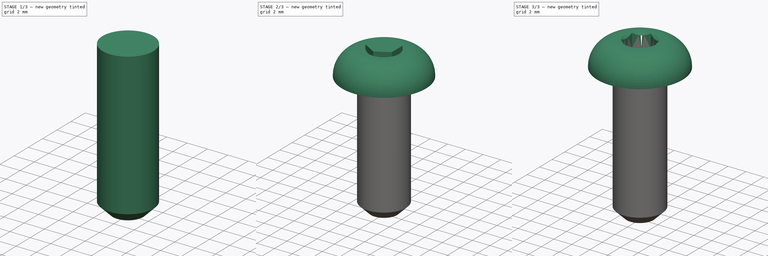
[diagram: build sequence overview — one tinted view per stage of 3, left to right]
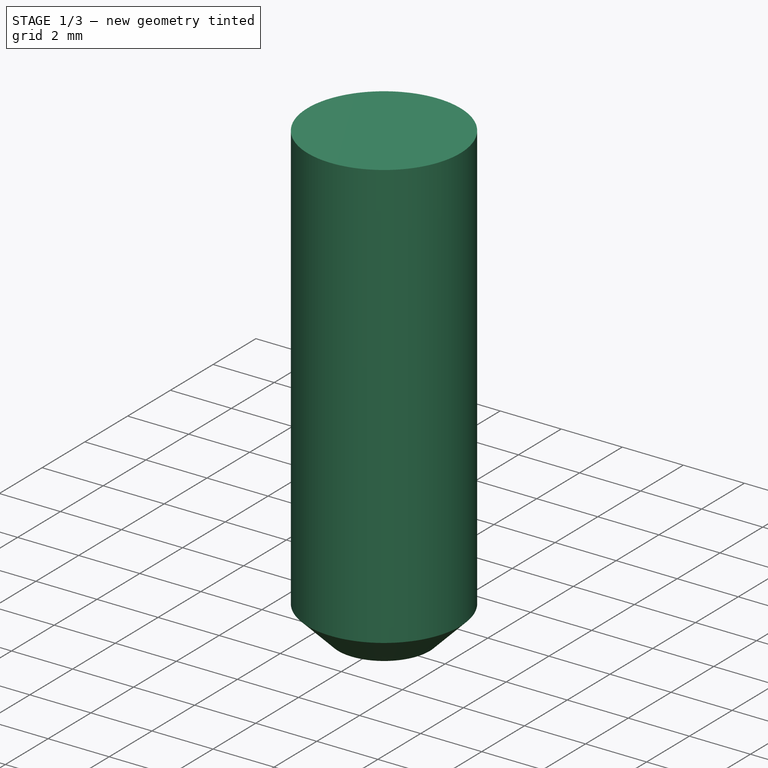
[diagram: stage 1 of 3 — iso view after this stage's code; geometry added in this stage tinted green]
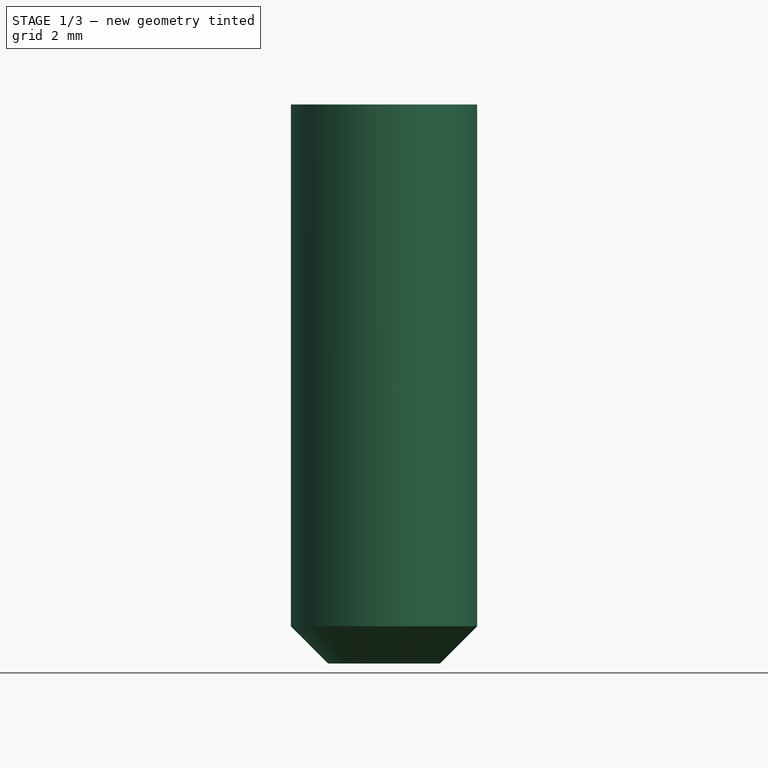
[diagram: stage 1 of 3 — front view after this stage's code; geometry added in this stage tinted green]
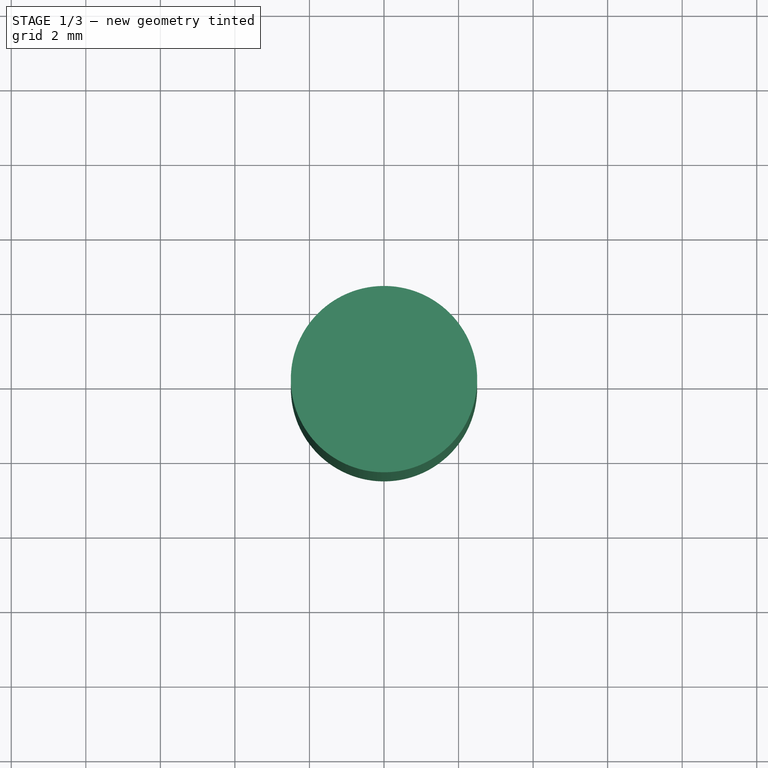
[diagram: stage 1 of 3 — top view after this stage's code; geometry added in this stage tinted green]
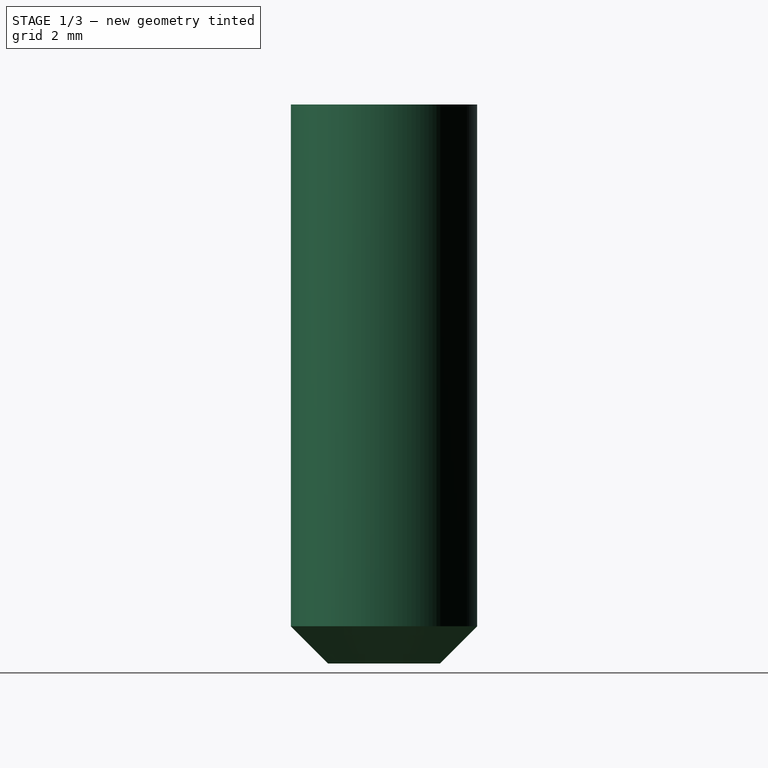
[diagram: stage 1 of 3 — right view after this stage's code; geometry added in this stage tinted green]
FCSTD DOCUMENT  (FreeCAD 0.20R)
Label: ISO7380_Hex_Socket_Button_Head_Screw_M5xXX
License: All rights reserved
LicenseURL: http://en.wikipedia.org/wiki/All_rights_reserved
objects: Sketcher::SketchObject×3, PartDesign::Body×3, PartDesign::Chamfer×2, PartDesign::Pad×2, PartDesign::Revolution×1, Part::Cut×1, Part::MultiFuse×1
note: 18 computed .brp shape members not serialized (recipe doc carries the construction recipe); baked Part::Feature solids carry a one-line shape summary decoded from their .brp

FEATURE [Sketcher::SketchObject] Sketch002
  FullyConstrained = true
  MapMode = 5
  Support = -> [XY_Plane002]
  sketch-geometry (1):
    g0: Circle CenterX=0 CenterY=0 CenterZ=0 NormalX=0 NormalY=0 NormalZ=1 AngleXU=0 Radius=2.5
  constraints (2):
    c: Radius(g0) = 2.5
    c: Coincident(g-1,g0)
FEATURE [PartDesign::Pad] Pad001  label="SetLength"
  Direction = (0,0,1)
  Length = 15
  Length2 = 10
  Profile = -> Sketch002
  ReferenceAxis = -> Sketch002 [N_Axis]
  Reversed = true
  Type = 0
FEATURE [PartDesign::Chamfer] Chamfer001
  Angle = 45
  Base = -> Pad001 [Edge3]
  BaseFeature = -> Pad001
  ChamferType = 0
  FlipDirection = false
  Size = 1
  Size2 = 1
  SupportTransform = false
  UseAllEdges = false
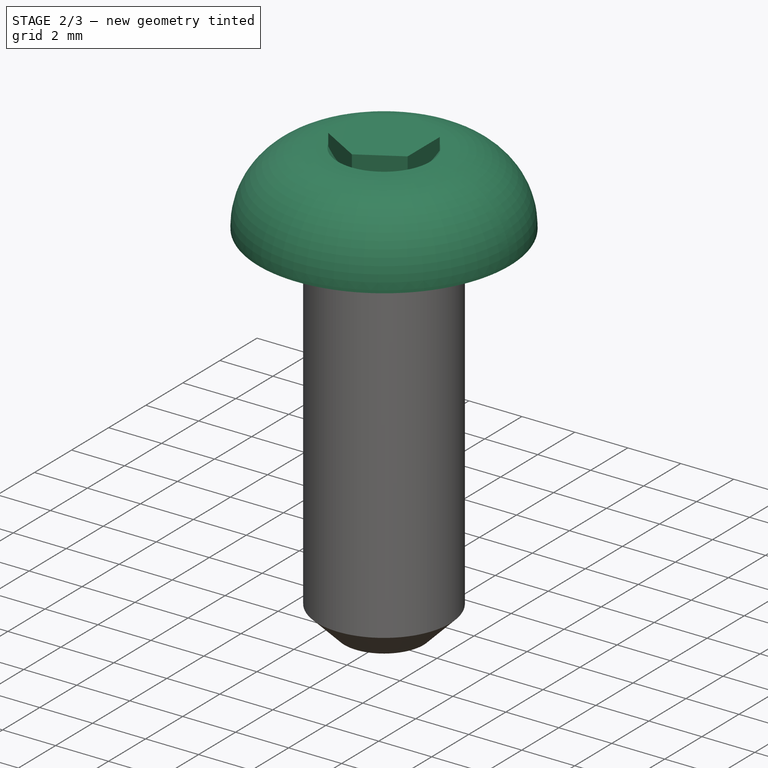
[diagram: stage 2 of 3 — iso view after this stage's code; geometry added in this stage tinted green]
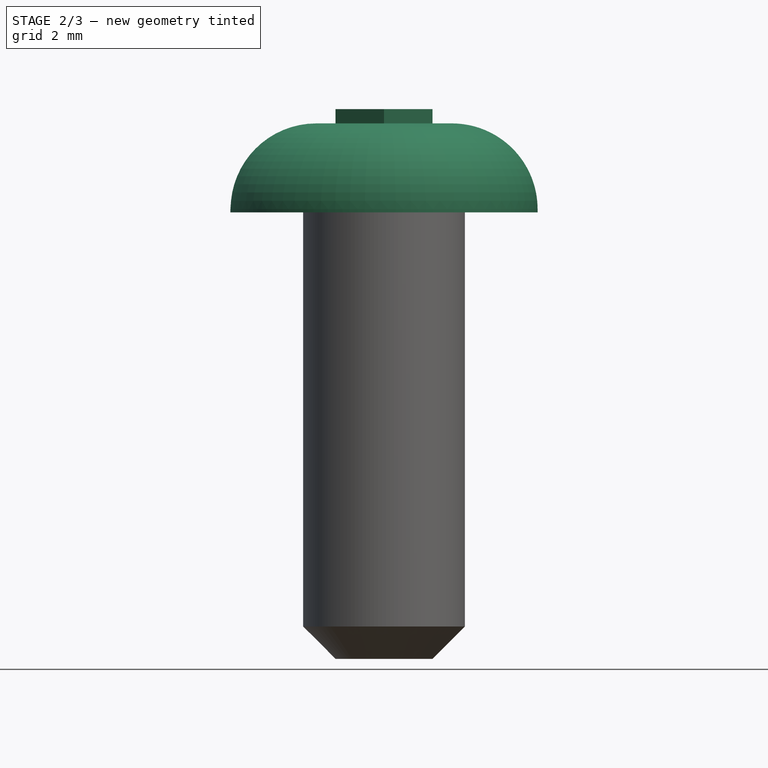
[diagram: stage 2 of 3 — front view after this stage's code; geometry added in this stage tinted green]
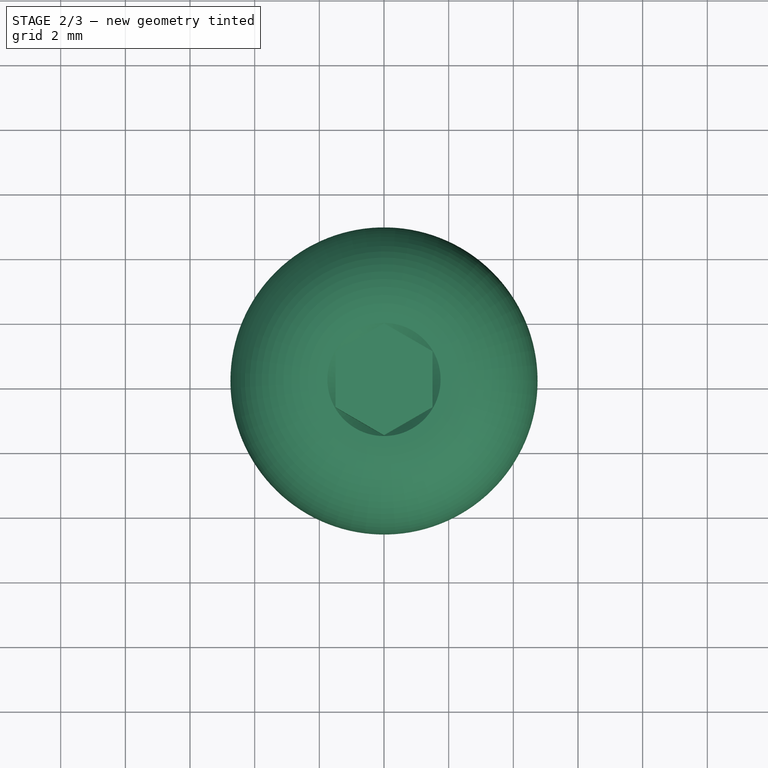
[diagram: stage 2 of 3 — top view after this stage's code; geometry added in this stage tinted green]
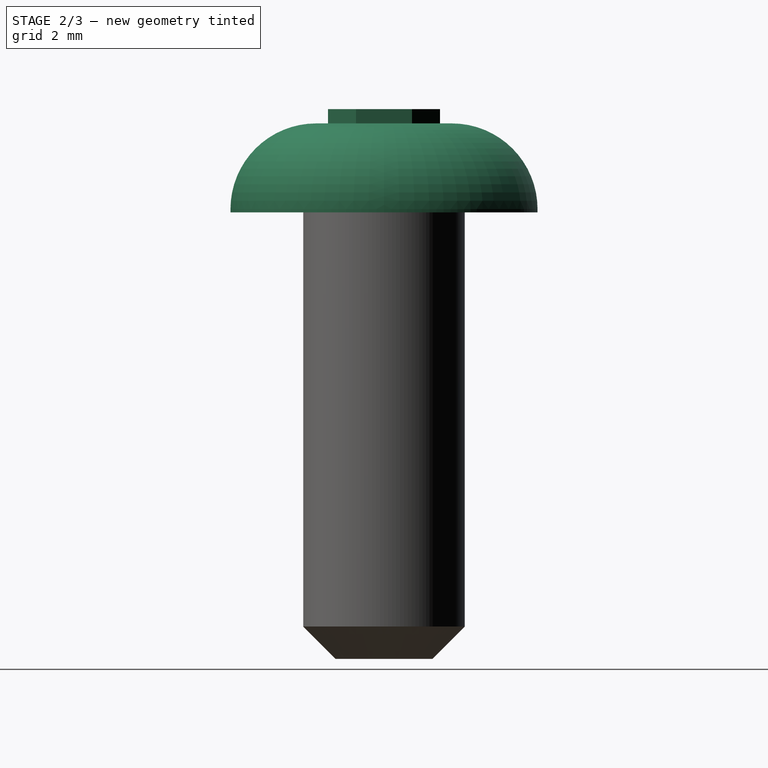
[diagram: stage 2 of 3 — right view after this stage's code; geometry added in this stage tinted green]
FEATURE [Sketcher::SketchObject] Sketch
  FullyConstrained = true
  MapMode = 5
  Placement = pos=(0,0,0) rot=(1,0,0;1.5708rad)
  Support = -> [XZ_Plane]
  sketch-geometry (7):
    g0: LineSegment StartX=1.982e-13 StartY=-1.19 StartZ=0 EndX=4.75 EndY=-1.19 EndZ=0
    g1: LineSegment StartX=4.75 StartY=-1.19 StartZ=0 EndX=4.75 EndY=-1.09 EndZ=0
    g2: ArcOfCircle CenterX=2.1 CenterY=-1.09 CenterZ=0 NormalX=0 NormalY=0 NormalZ=1 AngleXU=0 Radius=2.65 StartAngle=-8.127e-13 EndAngle=1.5708
    g3: LineSegment StartX=1.5 StartY=0 StartZ=0 EndX=1.5 EndY=1.56 EndZ=0
    g4: LineSegment StartX=1.5 StartY=1.56 StartZ=0 EndX=2.1 EndY=1.56 EndZ=0
    g5: LineSegment StartX=1.982e-13 StartY=-1.19 StartZ=0 EndX=2.1 EndY=0 EndZ=0
    g6: LineSegment StartX=2.1 StartY=0 StartZ=0 EndX=1.5 EndY=0 EndZ=0
  constraints (20):
    c: PointOnObject(g0,g-2)
    c: Horizontal(g0)
    c: DistanceX(g0,g0) = 4.75
    c: Coincident(g1,g0)
    c: Vertical(g1)
    c: Tangent(g1,g2) = -1.5708
    c: DistanceY(g0,g1) = 0.1
    c: Vertical(g3)
    c: Coincident(g4,g3)
    c: Horizontal(g4)
    c: DistanceX(g0,g3) = 1.5
    c: DistanceY(g0,g3) = 2.75
    c: Tangent(g4,g2) = 1.5708
    c: PointOnObject(g3,g-1)
    c: Coincident(g0,g5)
    c: Coincident(g5,g6)
    c: Coincident(g6,g3)
    c: Horizontal(g6)
    c: DistanceX(g6,g6) = 0.6
    c: DistanceY(g0,g5) = 1.19
FEATURE [PartDesign::Revolution] Revolution
  Angle = 360
  Axis = (0,2e-16,1)
  Base = (0,0,0)
  Placement = pos=(0,0,0) rot=(1,0,0;1.5708rad)
  Profile = -> Sketch
  ReferenceAxis = -> Sketch [V_Axis]
  Reversed = true
FEATURE [PartDesign::Chamfer] Chamfer
  Angle = 45
  Base = -> Revolution [Edge6]
  BaseFeature = -> Revolution
  ChamferType = 0
  FlipDirection = false
  Placement = pos=(0,0,0) rot=(1,0,0;1.5708rad)
  Size = 0.25
  Size2 = 1
  SupportTransform = false
  UseAllEdges = false
FEATURE [PartDesign::Body] Body
  Group = -> [Sketch,Revolution,Chamfer]
  Origin = -> Origin
  Tip = -> Chamfer
FEATURE [Sketcher::SketchObject] Sketch001
  FullyConstrained = true
  MapMode = 5
  Support = -> [XY_Plane001]
  sketch-geometry (7):
    g0: LineSegment StartX=1.5 StartY=-0.866025 StartZ=0 EndX=1.5 EndY=0.866025 EndZ=0
    g1: LineSegment StartX=1.5 StartY=0.866025 StartZ=0 EndX=-4.44e-14 EndY=1.73205 EndZ=0
    g2: LineSegment StartX=-4.44e-14 StartY=1.73205 StartZ=0 EndX=-1.5 EndY=0.866025 EndZ=0
    g3: LineSegment StartX=-1.5 StartY=0.866025 StartZ=0 EndX=-1.5 EndY=-0.866025 EndZ=0
    g4: LineSegment StartX=-1.5 StartY=-0.866025 StartZ=0 EndX=-7e-16 EndY=-1.73205 EndZ=0
    g5: LineSegment StartX=-7e-16 StartY=-1.73205 StartZ=0 EndX=1.5 EndY=-0.866025 EndZ=0
    g6: Circle CenterX=-1.55e-14 CenterY=-2e-14 CenterZ=0 NormalX=0 NormalY=0 NormalZ=1 AngleXU=0 Radius=1.73205
  constraints (16):
    c: Coincident(g0,g1)
    c: Coincident(g1,g2)
    c: Coincident(g2,g3)
    c: Coincident(g3,g4)
    c: Coincident(g4,g5)
    c: Coincident(g5,g0)
    c: Equal(g0, g1-g5) x5
    c: PointOnObject(g0,g6)
    c: PointOnObject(g1,g6)
    c: PointOnObject(g2,g6)
    c: PointOnObject(g3,g6)
    c: PointOnObject(g4,g6)
    c: PointOnObject(g5,g6)
    c: Vertical(g0)
    c: DistanceX(g3,g0) = 3
    c: Coincident(g6,g-1)
FEATURE [PartDesign::Pad] Pad
  Direction = (0,0,1)
  Length = 2
  Length2 = 10
  Profile = -> Sketch001
  ReferenceAxis = -> Sketch001 [N_Axis]
  Type = 0
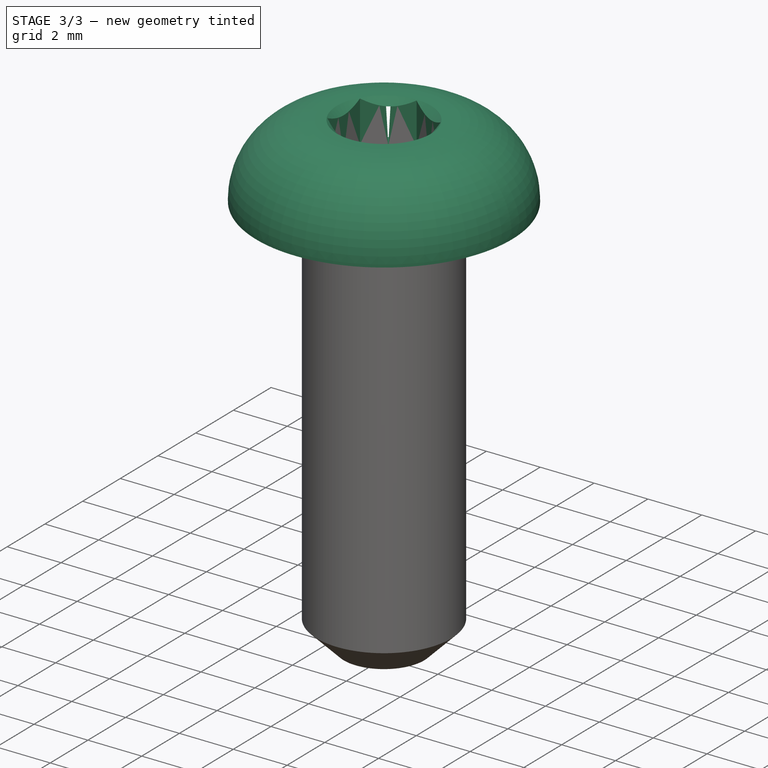
[diagram: stage 3 of 3 — iso view after this stage's code; geometry added in this stage tinted green]
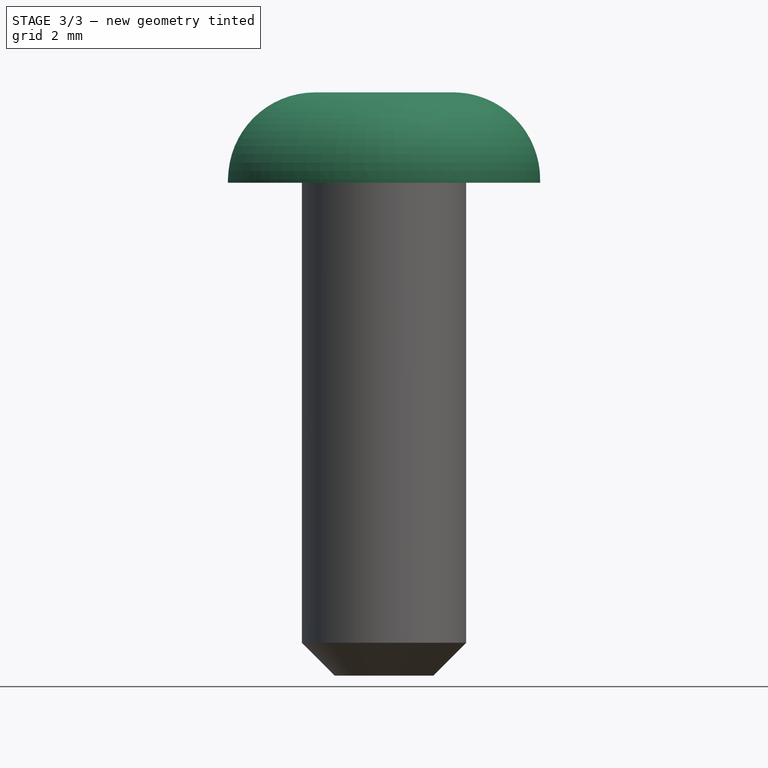
[diagram: stage 3 of 3 — front view after this stage's code; geometry added in this stage tinted green]
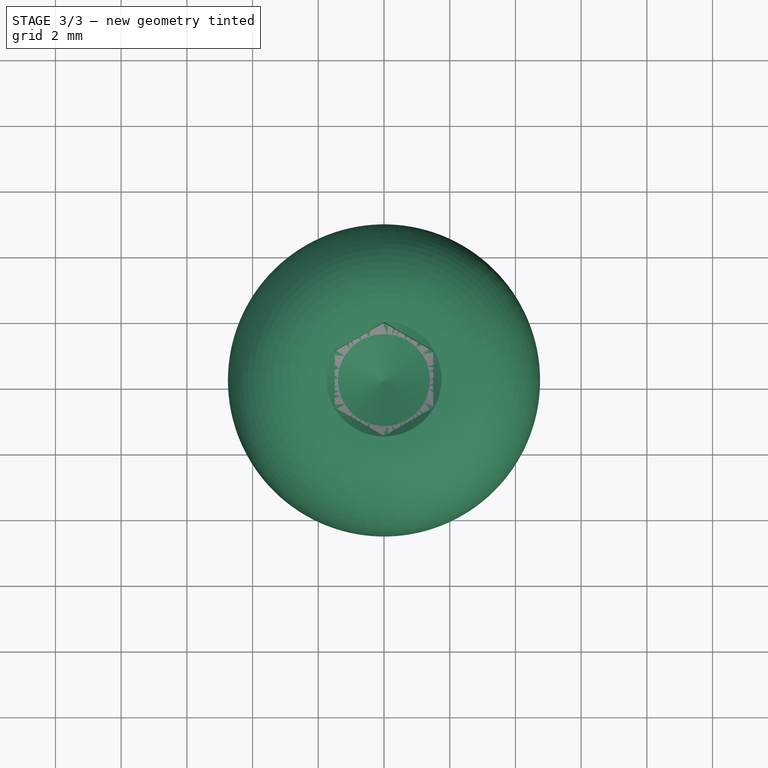
[diagram: stage 3 of 3 — top view after this stage's code; geometry added in this stage tinted green]
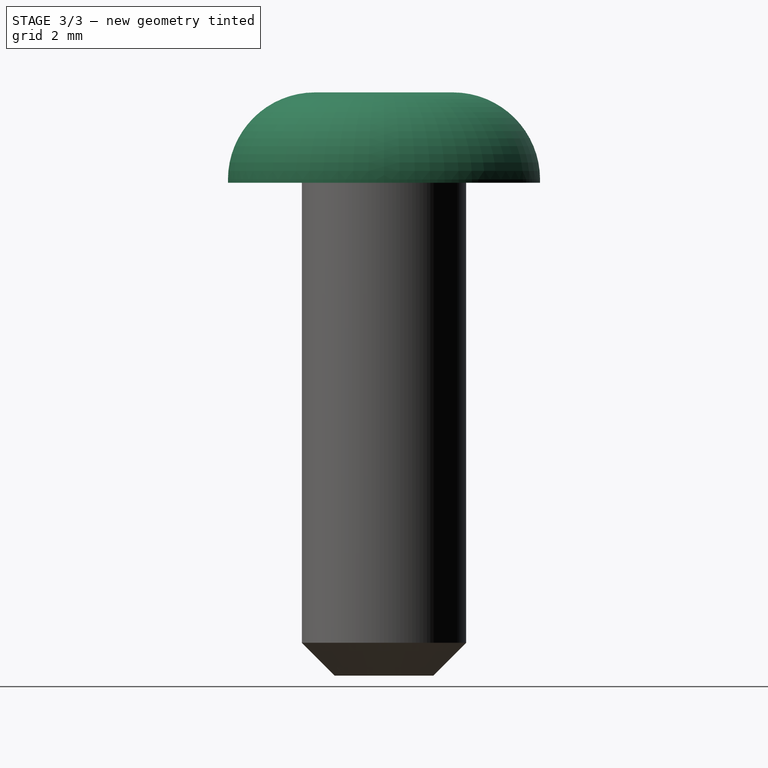
[diagram: stage 3 of 3 — right view after this stage's code; geometry added in this stage tinted green]
FEATURE [PartDesign::Body] Body001
  Group = -> [Sketch001,Pad]
  Origin = -> Origin001
  Tip = -> Pad
FEATURE [Part::Cut] Cut
  Base = -> Body
  Placement = pos=(0,0,1.19) rot=(0,0,1;0rad)
  Tool = -> Body001
FEATURE [PartDesign::Body] Body002
  Group = -> [Sketch002,Pad001,Chamfer001]
  Origin = -> Origin002
  Tip = -> Chamfer001
FEATURE [Part::MultiFuse] Fusion
  Shapes = -> [Cut,Body002]
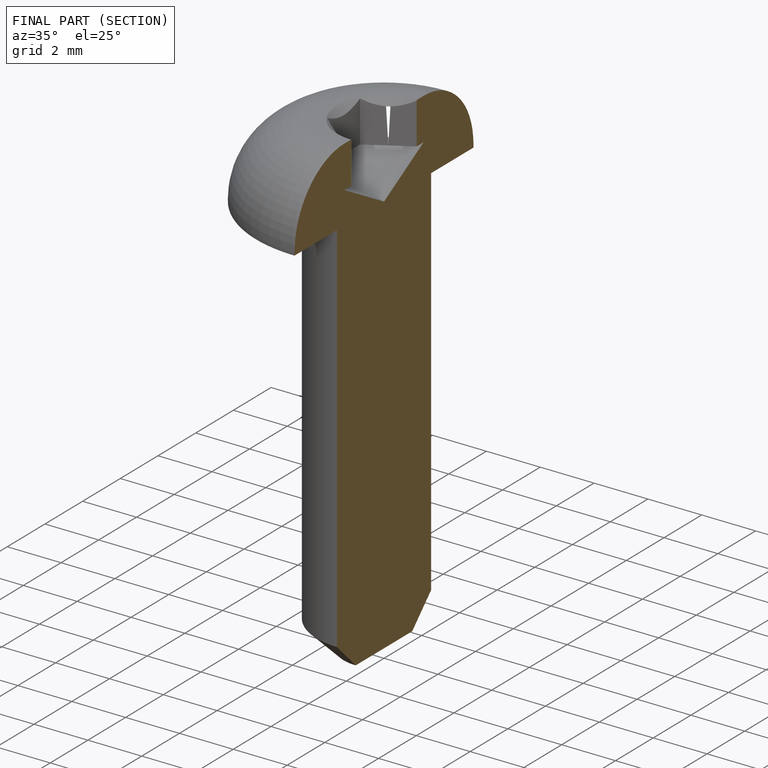
[diagram: finished part — half-section view (interior)]
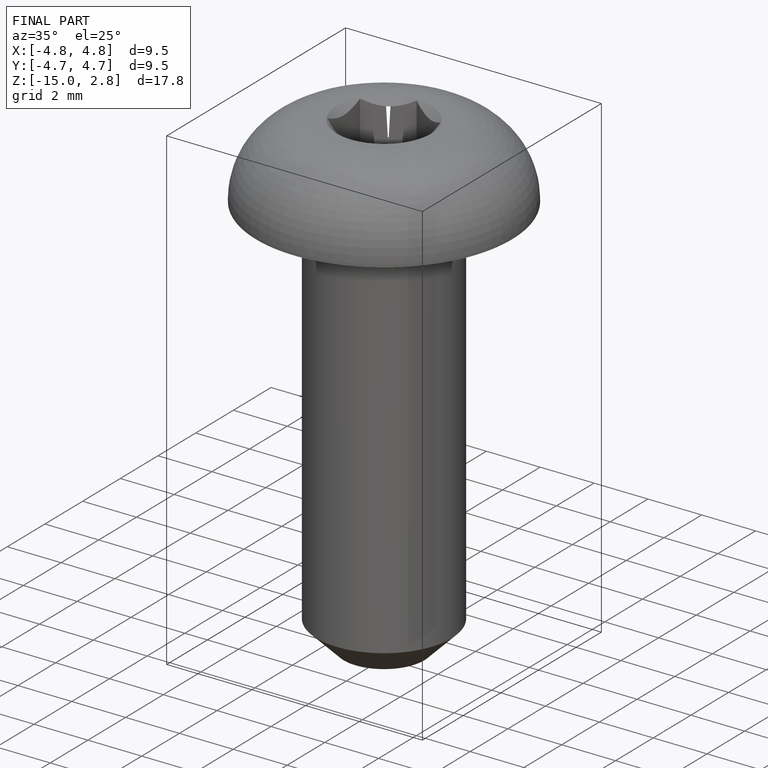
[diagram: finished part — iso view with bounding-box wireframe]
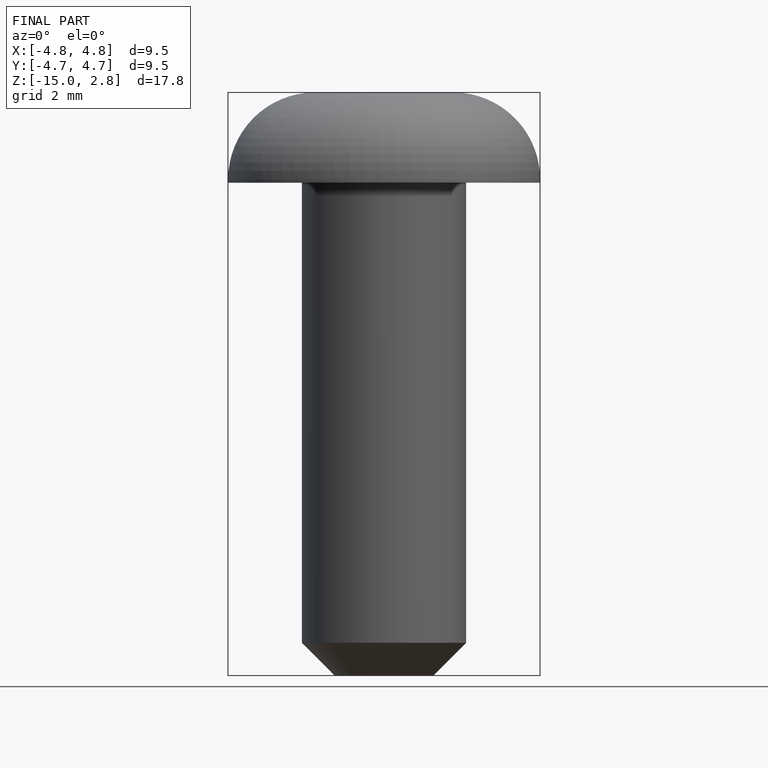
[diagram: finished part — front view with bounding-box wireframe]
